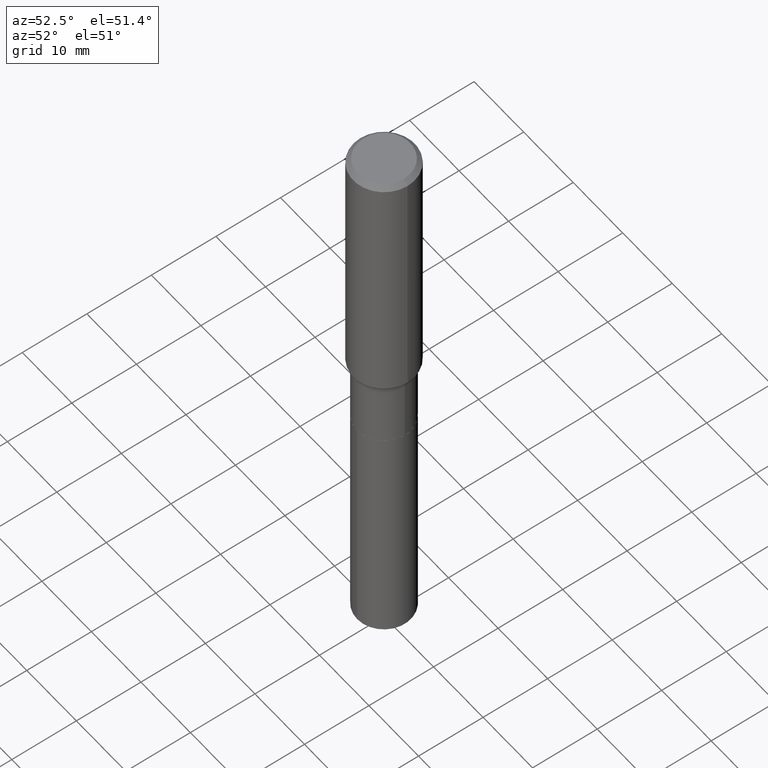
[diagram: clean part render]
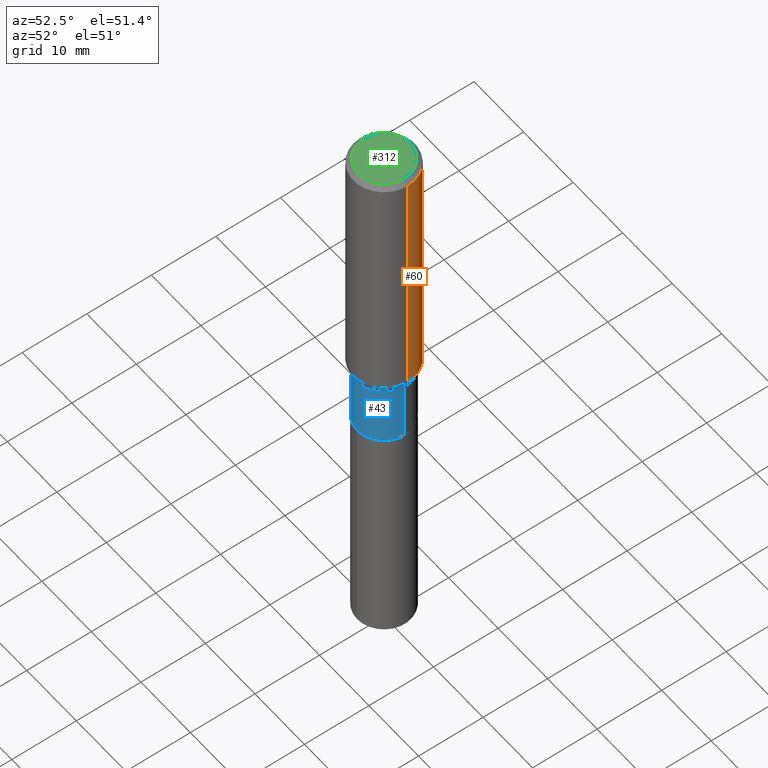
[diagram: same view with three faces highlighted in distinct colors, each labeled with its STEP entity id]
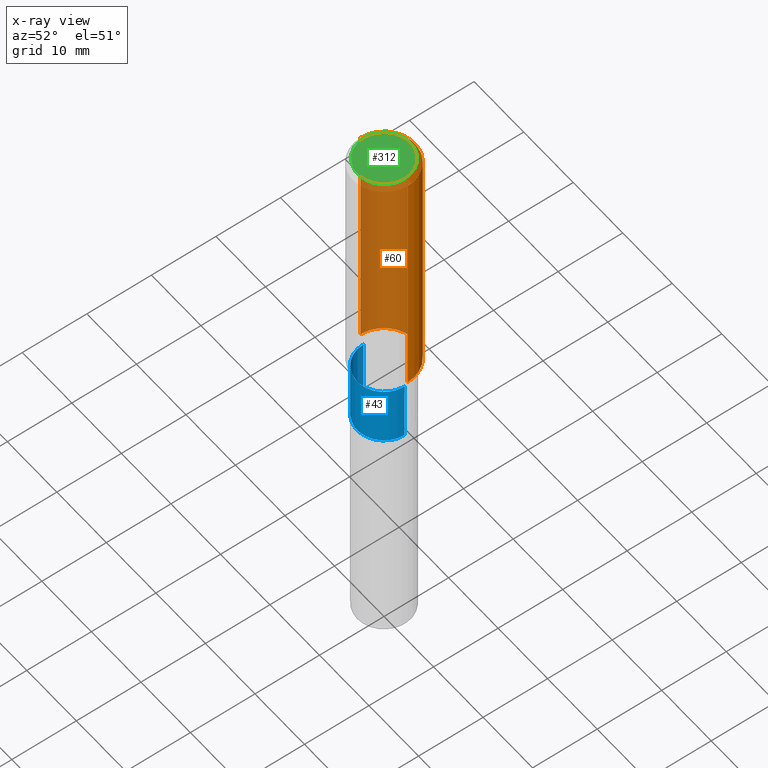
[diagram: x-ray of the same camera — body ghosted, the three highlighted faces saturated]
A machine part, auxiliary view with three faces highlighted in distinct colors.
The next image is the same camera in x-ray (body ghosted, the three faces saturated) — at least one of them is partly hidden behind the body in this view.
Their STEP definitions:

[orange] entity #60 — the highlighted cylindrical surface (partial cylindrical patch) has radius 4.7625 mm, axis along (-0, 0, 1).
#6 = LINE ( 'NONE', #203, #468 ) ;
#29 = AXIS2_PLACEMENT_3D ( 'NONE', #276, #428, #89 ) ;
#33 = DIRECTION ( 'NONE',  ( -2.445468806185136877E-29, 3.491481338843145188E-15, 1.000000000000000000 ) ) ;
#60 = ADVANCED_FACE ( 'NONE', ( #472 ), #61, .T. ) ;
#61 = CYLINDRICAL_SURFACE ( 'NONE', #443, 0.1875000000000001110 ) ;
#72 = CARTESIAN_POINT ( 'NONE',  ( 0.1875000000000000555, -1.407503414721139514E-15, -0.02812500000000019151 ) ) ;
#73 = EDGE_LOOP ( 'NONE', ( #257, #197, #273, #188 ) ) ;
#89 = DIRECTION ( 'NONE',  ( 1.000000000000000000, -6.982962677686265922E-15, 0.000000000000000000 ) ) ;
#92 = VECTOR ( 'NONE', #33, 39.37007874015748143 ) ;
#113 = CARTESIAN_POINT ( 'NONE',  ( -0.1875000000000000555, -1.424907860923310518E-15, -0.02812500000000019151 ) ) ;
#132 = EDGE_CURVE ( 'NONE', #233, #216, #165, .T. ) ;
#165 = CIRCLE ( 'NONE', #29, 0.1875000000000001943 ) ;
#170 = DIRECTION ( 'NONE',  ( 1.000000000000000000, -6.982962677686266711E-15, 4.876176775795935793E-29 ) ) ;
#172 = CARTESIAN_POINT ( 'NONE',  ( 0.000000000000000000, 0.000000000000000000, 0.000000000000000000 ) ) ;
#181 = LINE ( 'NONE', #452, #92 ) ;
#182 = EDGE_CURVE ( 'NONE', #233, #265, #181, .T. ) ;
#188 = ORIENTED_EDGE ( 'NONE', *, *, #182, .F. ) ;
#197 = ORIENTED_EDGE ( 'NONE', *, *, #465, .T. ) ;
#203 = CARTESIAN_POINT ( 'NONE',  ( -0.1875000000000001110, 1.332267629550188637E-15, -9.223003294227953596E-30 ) ) ;
#216 = VERTEX_POINT ( 'NONE', #409 ) ;
#233 = VERTEX_POINT ( 'NONE', #414 ) ;
#242 = DIRECTION ( 'NONE',  ( 1.000000000000000000, -6.982962677686265922E-15, 0.000000000000000000 ) ) ;
#257 = ORIENTED_EDGE ( 'NONE', *, *, #132, .T. ) ;
#265 = VERTEX_POINT ( 'NONE', #72 ) ;
#273 = ORIENTED_EDGE ( 'NONE', *, *, #404, .F. ) ;
#276 = CARTESIAN_POINT ( 'NONE',  ( 3.793528331565033205E-29, -5.416153068292034593E-15, -1.551247892416518726 ) ) ;
#280 = DIRECTION ( 'NONE',  ( -2.445468806185136597E-29, 3.491481338843145583E-15, 1.000000000000000000 ) ) ;
#293 = VERTEX_POINT ( 'NONE', #113 ) ;
#327 = CIRCLE ( 'NONE', #394, 0.1875000000000000555 ) ;
#381 = DIRECTION ( 'NONE',  ( -2.445468806185136877E-29, 3.491481338843145188E-15, 1.000000000000000000 ) ) ;
#394 = AXIS2_PLACEMENT_3D ( 'NONE', #423, #280, #242 ) ;
#404 = EDGE_CURVE ( 'NONE', #265, #293, #327, .T. ) ;
#409 = CARTESIAN_POINT ( 'NONE',  ( -0.1875000000000001943, -4.083885438741845167E-15, -1.551247892416518726 ) ) ;
#414 = CARTESIAN_POINT ( 'NONE',  ( 0.1875000000000001943, -6.725458570358210390E-15, -1.551247892416518726 ) ) ;
#423 = CARTESIAN_POINT ( 'NONE',  ( 6.877881017395743622E-31, -9.819791265496413635E-17, -0.02812500000000019151 ) ) ;
#428 = DIRECTION ( 'NONE',  ( -2.445468806185136597E-29, 3.491481338843145583E-15, 1.000000000000000000 ) ) ;
#443 = AXIS2_PLACEMENT_3D ( 'NONE', #172, #469, #170 ) ;
#452 = CARTESIAN_POINT ( 'NONE',  ( 0.1875000000000001110, -1.309305502066175797E-15, 9.142831454617385217E-30 ) ) ;
#465 = EDGE_CURVE ( 'NONE', #216, #293, #6, .T. ) ;
#468 = VECTOR ( 'NONE', #381, 39.37007874015748143 ) ;
#469 = DIRECTION ( 'NONE',  ( -2.445468806185136597E-29, 3.491481338843145583E-15, 1.000000000000000000 ) ) ;
#472 = FACE_OUTER_BOUND ( 'NONE', #73, .T. ) ;

[blue] entity #43 — the highlighted cylindrical surface (edge-blend (fillet) strip) has radius 4.1669 mm, axis along (-0, 0, 1).
#7 = EDGE_LOOP ( 'NONE', ( #64, #153, #150, #65 ) ) ;
#18 = DIRECTION ( 'NONE',  ( 1.000000000000000000, -6.982962677686267499E-15, 4.876176775795935793E-29 ) ) ;
#20 = DIRECTION ( 'NONE',  ( -2.445468806185136597E-29, 3.491481338843145583E-15, 1.000000000000000000 ) ) ;
#37 = CARTESIAN_POINT ( 'NONE',  ( -0.1640499999999999459, -5.102960237744538944E-15, -1.983799999999999786 ) ) ;
#43 = ADVANCED_FACE ( 'NONE', ( #396 ), #134, .T. ) ;
#62 = AXIS2_PLACEMENT_3D ( 'NONE', #96, #20, #18 ) ;
#64 = ORIENTED_EDGE ( 'NONE', *, *, #225, .F. ) ;
#65 = ORIENTED_EDGE ( 'NONE', *, *, #444, .F. ) ;
#81 = DIRECTION ( 'NONE',  ( -2.445468806185136597E-29, 3.491481338843145583E-15, 1.000000000000000000 ) ) ;
#83 = CARTESIAN_POINT ( 'NONE',  ( 3.929868371539514524E-29, -5.610810511520934140E-15, -1.606999999999999762 ) ) ;
#96 = CARTESIAN_POINT ( 'NONE',  ( 0.000000000000000000, 0.000000000000000000, 0.000000000000000000 ) ) ;
#101 = EDGE_CURVE ( 'NONE', #158, #179, #440, .T. ) ;
#106 = AXIS2_PLACEMENT_3D ( 'NONE', #126, #81, #119 ) ;
#115 = VECTOR ( 'NONE', #190, 39.37007874015748143 ) ;
#119 = DIRECTION ( 'NONE',  ( 1.000000000000000000, -6.982962677686266711E-15, 0.000000000000000000 ) ) ;
#123 = DIRECTION ( 'NONE',  ( 1.000000000000000000, -6.982962677686266711E-15, 0.000000000000000000 ) ) ;
#125 = AXIS2_PLACEMENT_3D ( 'NONE', #83, #390, #123 ) ;
#126 = CARTESIAN_POINT ( 'NONE',  ( 4.851321017710073264E-29, -6.926400679997031294E-15, -1.983799999999999786 ) ) ;
#134 = CYLINDRICAL_SURFACE ( 'NONE', #62, 0.1640499999999999459 ) ;
#150 = ORIENTED_EDGE ( 'NONE', *, *, #101, .T. ) ;
#153 = ORIENTED_EDGE ( 'NONE', *, *, #398, .T. ) ;
#158 = VERTEX_POINT ( 'NONE', #432 ) ;
#179 = VERTEX_POINT ( 'NONE', #335 ) ;
#190 = DIRECTION ( 'NONE',  ( -2.445468806185136877E-29, 3.491481338843145188E-15, 1.000000000000000000 ) ) ;
#204 = CARTESIAN_POINT ( 'NONE',  ( 0.1640499999999999459, -1.145555027274431860E-15, 7.999368000693230140E-30 ) ) ;
#223 = CARTESIAN_POINT ( 'NONE',  ( -0.1640499999999999459, 1.165645358014443970E-15, -8.069513015563170763E-30 ) ) ;
#225 = EDGE_CURVE ( 'NONE', #292, #336, #264, .T. ) ;
#264 = LINE ( 'NONE', #223, #115 ) ;
#282 = DIRECTION ( 'NONE',  ( -2.445468806185136877E-29, 3.491481338843145188E-15, 1.000000000000000000 ) ) ;
#292 = VERTEX_POINT ( 'NONE', #37 ) ;
#319 = CIRCLE ( 'NONE', #106, 0.1640499999999999459 ) ;
#334 = CIRCLE ( 'NONE', #125, 0.1640499999999999459 ) ;
#335 = CARTESIAN_POINT ( 'NONE',  ( 0.1640499999999999459, -6.756365538795365803E-15, -1.606999999999999762 ) ) ;
#336 = VERTEX_POINT ( 'NONE', #419 ) ;
#390 = DIRECTION ( 'NONE',  ( -2.445468806185136597E-29, 3.491481338843145583E-15, 1.000000000000000000 ) ) ;
#396 = FACE_OUTER_BOUND ( 'NONE', #7, .T. ) ;
#398 = EDGE_CURVE ( 'NONE', #292, #158, #319, .T. ) ;
#419 = CARTESIAN_POINT ( 'NONE',  ( -0.1640499999999999459, -5.102960237744538944E-15, -1.606999999999999762 ) ) ;
#432 = CARTESIAN_POINT ( 'NONE',  ( 0.1640499999999999459, -8.071955707271462957E-15, -1.983799999999999786 ) ) ;
#440 = LINE ( 'NONE', #204, #459 ) ;
#444 = EDGE_CURVE ( 'NONE', #336, #179, #334, .T. ) ;
#459 = VECTOR ( 'NONE', #282, 39.37007874015748143 ) ;

[green] entity #312 — the highlighted planar face has unit normal (0, -0, -1).
#4 = FACE_OUTER_BOUND ( 'NONE', #288, .T. ) ;
#5 = VERTEX_POINT ( 'NONE', #474 ) ;
#8 = AXIS2_PLACEMENT_3D ( 'NONE', #143, #330, #149 ) ;
#45 = AXIS2_PLACEMENT_3D ( 'NONE', #128, #192, #90 ) ;
#63 = CIRCLE ( 'NONE', #8, 0.1593749999999999889 ) ;
#67 = DIRECTION ( 'NONE',  ( 2.438088387897960049E-29, -3.491481338843145188E-15, -1.000000000000000000 ) ) ;
#90 = DIRECTION ( 'NONE',  ( 1.000000000000000000, -6.982962677686267499E-15, 4.876227444496879000E-29 ) ) ;
#128 = CARTESIAN_POINT ( 'NONE',  ( -7.955031918821655674E-47, 1.135767727816384611E-32, 3.252968060235159768E-18 ) ) ;
#129 = CARTESIAN_POINT ( 'NONE',  ( 0.1593749999999999889, -1.238966577815982495E-15, 3.252968060243383104E-18 ) ) ;
#143 = CARTESIAN_POINT ( 'NONE',  ( -7.955031918821655674E-47, 1.135767727816384611E-32, 3.252968060235159768E-18 ) ) ;
#146 = PLANE ( 'NONE',  #435 ) ;
#149 = DIRECTION ( 'NONE',  ( 1.000000000000000000, -6.982962677686267499E-15, 4.876227444496879000E-29 ) ) ;
#151 = DIRECTION ( 'NONE',  ( -1.000000000000000000, 6.982962677686265922E-15, -4.876176775795935793E-29 ) ) ;
#156 = VERTEX_POINT ( 'NONE', #129 ) ;
#184 = ORIENTED_EDGE ( 'NONE', *, *, #200, .T. ) ;
#192 = DIRECTION ( 'NONE',  ( -2.445468806185136597E-29, 3.491481338843145583E-15, 1.000000000000000000 ) ) ;
#200 = EDGE_CURVE ( 'NONE', #5, #156, #63, .T. ) ;
#220 = CARTESIAN_POINT ( 'NONE',  ( -3.977515959410827837E-47, 5.678838639081923055E-33, 1.626484030117579884E-18 ) ) ;
#267 = CIRCLE ( 'NONE', #45, 0.1593749999999999889 ) ;
#288 = EDGE_LOOP ( 'NONE', ( #184, #377 ) ) ;
#312 = ADVANCED_FACE ( 'NONE', ( #4 ), #146, .F. ) ;
#330 = DIRECTION ( 'NONE',  ( -2.445468806185136597E-29, 3.491481338843145583E-15, 1.000000000000000000 ) ) ;
#370 = EDGE_CURVE ( 'NONE', #156, #5, #267, .T. ) ;
#377 = ORIENTED_EDGE ( 'NONE', *, *, #370, .T. ) ;
#435 = AXIS2_PLACEMENT_3D ( 'NONE', #220, #67, #151 ) ;
#474 = CARTESIAN_POINT ( 'NONE',  ( -0.1593749999999999889, 1.162008633083729827E-15, 3.252968060227205293E-18 ) ) ;